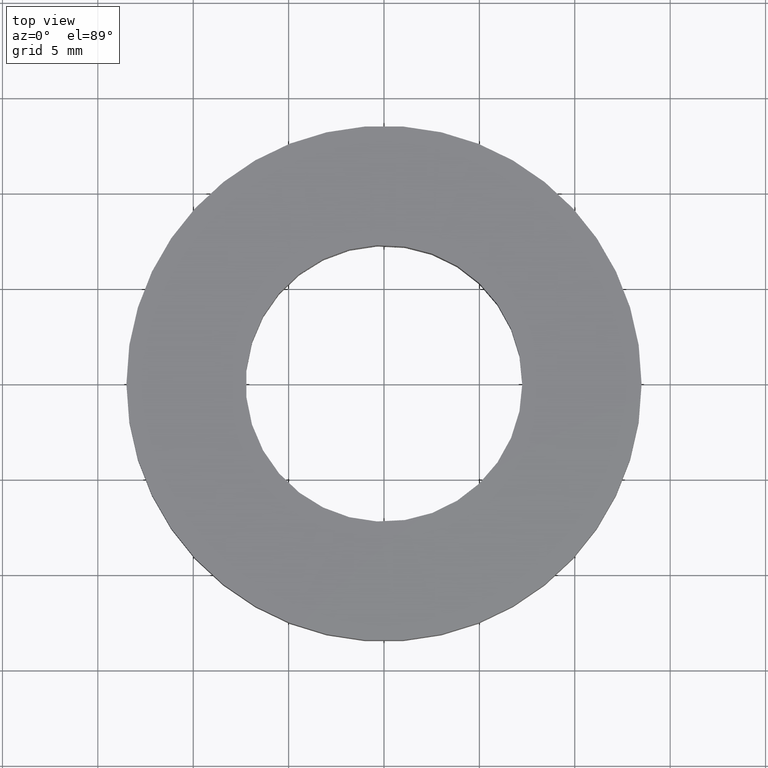
[diagram: clean part render]
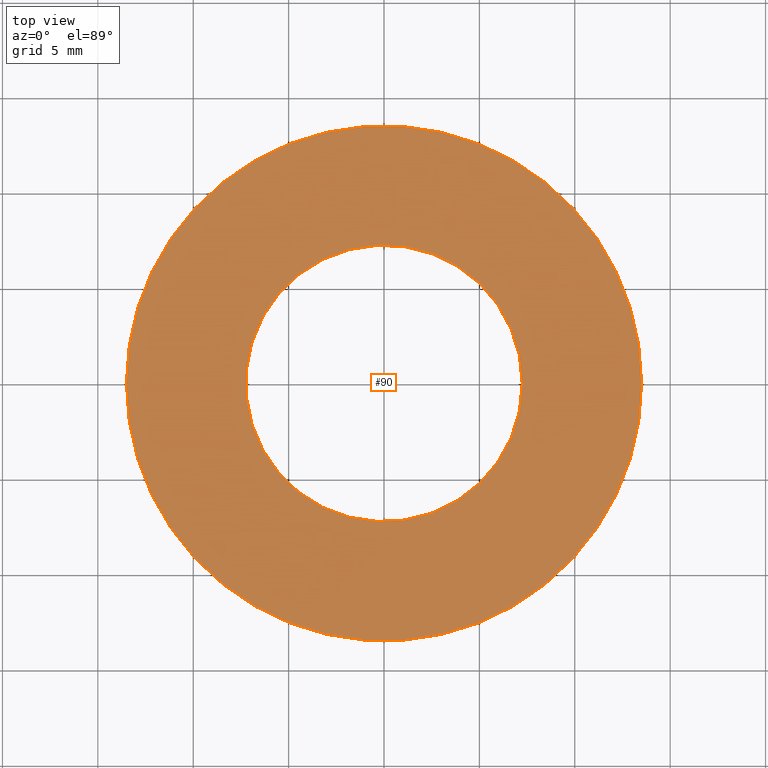
[diagram: same view with one face highlighted and labeled with its STEP entity id]
A machine part, top view. The second image highlights one B-rep face of the part: STEP entity #90.
In plain terms, the highlighted planar face has unit normal (0, 0, 1).
Its self-contained STEP definition (entity closure, byte-faithful):
#24=ORIENTED_EDGE('',*,*,#38,.F.);
#25=ORIENTED_EDGE('',*,*,#39,.T.);
#38=EDGE_CURVE('',#45,#45,#52,.T.);
#39=EDGE_CURVE('',#46,#46,#53,.T.);
#45=VERTEX_POINT('',#157);
#46=VERTEX_POINT('',#159);
#52=CIRCLE('',#111,7.25);
#53=CIRCLE('',#112,13.5);
#59=EDGE_LOOP('',(#24));
#60=EDGE_LOOP('',(#25));
#73=FACE_BOUND('',#59,.T.);
#74=FACE_BOUND('',#60,.T.);
#87=PLANE('',#110);
#90=ADVANCED_FACE('',(#73,#74),#87,.T.);
#110=AXIS2_PLACEMENT_3D('',#155,#126,#127);
#111=AXIS2_PLACEMENT_3D('',#156,#128,#129);
#112=AXIS2_PLACEMENT_3D('',#158,#130,#131);
#126=DIRECTION('',(0.,0.,1.));
#127=DIRECTION('',(1.,0.,0.));
#128=DIRECTION('',(0.,0.,1.));
#129=DIRECTION('',(1.,0.,0.));
#130=DIRECTION('',(0.,0.,1.));
#131=DIRECTION('',(1.,0.,0.));
#155=CARTESIAN_POINT('',(7.25,0.,4.));
#156=CARTESIAN_POINT('',(0.,0.,4.));
#157=CARTESIAN_POINT('',(7.25,0.,4.));
#158=CARTESIAN_POINT('',(0.,0.,4.));
#159=CARTESIAN_POINT('',(13.5,0.,4.));